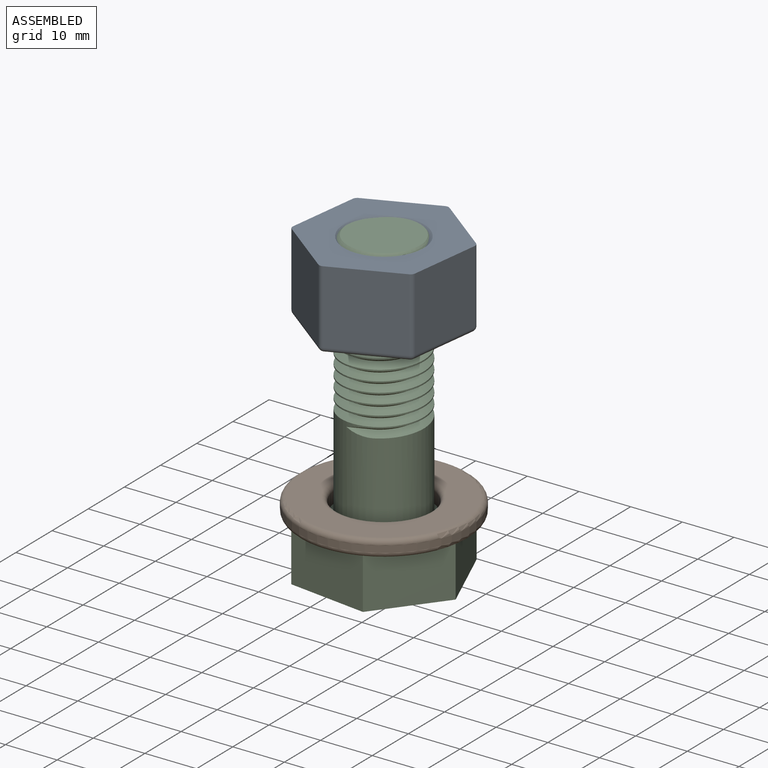
[diagram: assembled view]
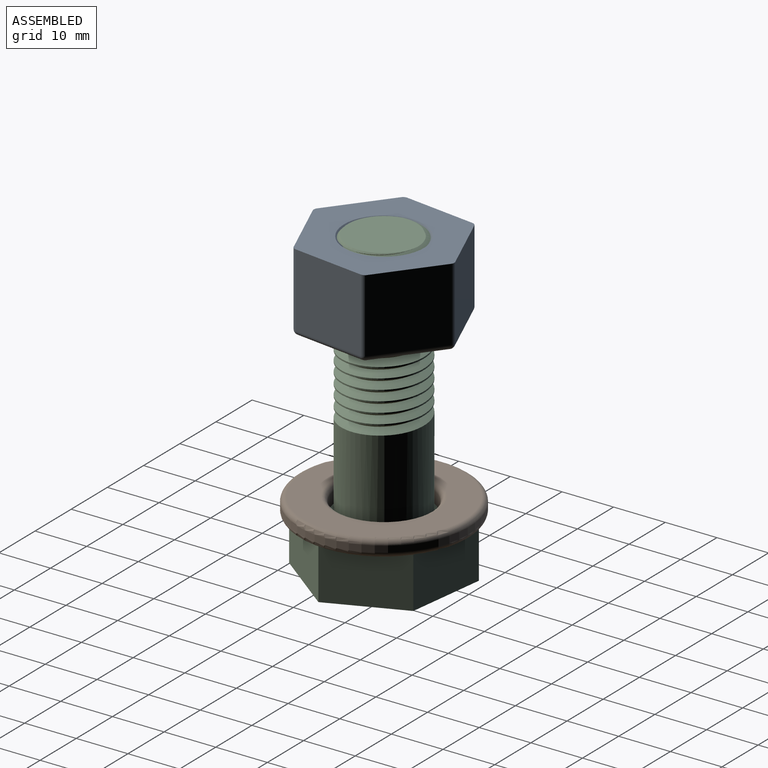
[diagram: assembled view, second angle]
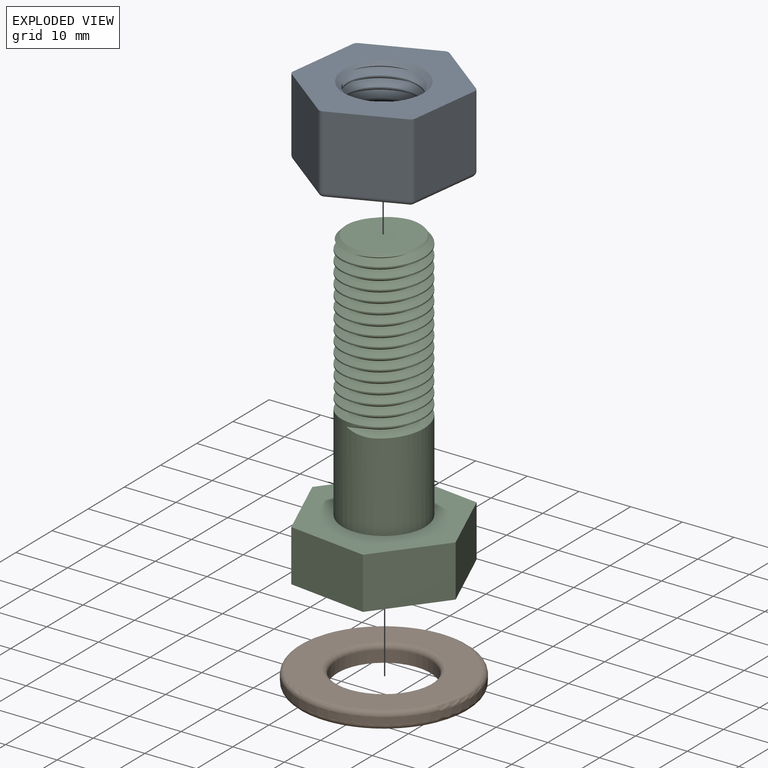
[diagram: exploded view]
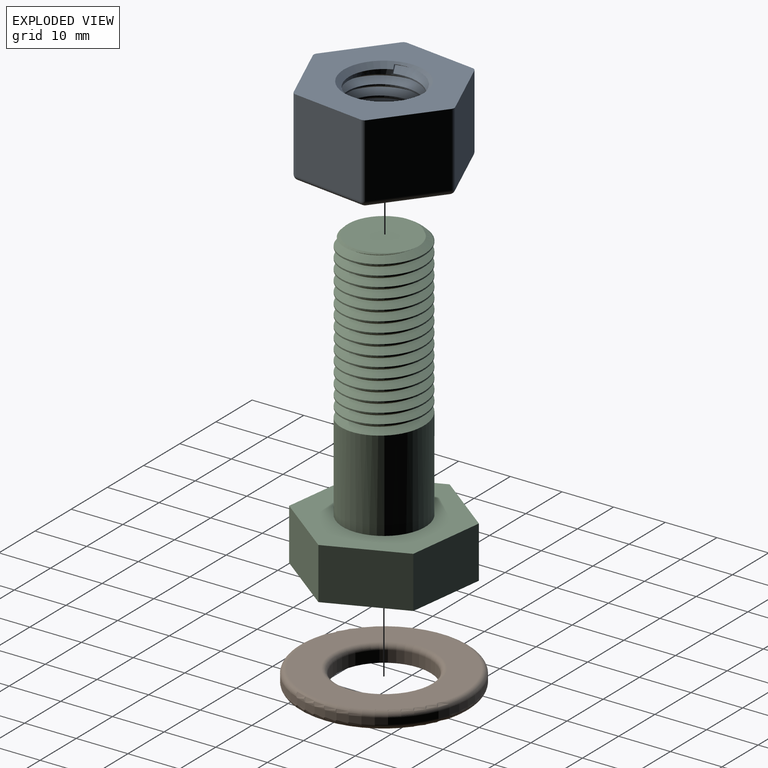
[diagram: exploded view, second angle]
ASSEMBLY  parts=3 mates=2
PART A: 32 faces, bbox 30.2x26.5x16.6 mm
  f0: cone r=7.75mm half-angle=45deg, axis (0,0,-1), area 54.6mm2, adj f8,f27,f29,f31
  f1: plane 14.25x12.13mm, normal (0.87,0.5,0), area 199.5mm2, adj f8,f17,f23,f26
  f2: plane 14.25x14mm, normal (0,1,0), area 199.5mm2, adj f8,f20,f24,f26
  f3: plane 14.25x12.13mm, normal (-0.87,0.5,0), area 199.5mm2, adj f8,f14,f19,f20
  f4: plane 14.25x12.13mm, normal (-0.87,-0.5,0), area 199.5mm2, adj f8,f9,f13,f14
  f5: plane 14.25x14mm, normal (0,-1,0), area 199.5mm2, adj f8,f9,f11,f12
  f6: plane 14.25x12.13mm, normal (0.87,-0.5,0), area 199.5mm2, adj f8,f11,f17,f18
  f7: plane 28.21x24.46mm, normal (0,0,1), area 317mm2, adj f12,f13,f18,f19,f23,f24,f28,f30
  f8: plane 30x26.25mm, normal (0,0,-1), area 407.7mm2, adj f0,f1,f2,f3,f4,f5,f6,f9
  f9: cylinder r=1mm len=14.25mm, axis (0,0,-1), area 14.9mm2, adj f4,f5,f8,f10
  f10: sphere r=1mm, area 1mm2, adj f9,f12,f13
  f11: cylinder r=1mm len=14.25mm, axis (0,0,-1), area 14.9mm2, adj f5,f6,f8,f15
  f12: cylinder r=1mm len=14mm, axis (-1,0,0), area 22mm2, adj f5,f7,f10,f15
  f13: cylinder r=1mm len=12.63mm, axis (-0.5,0.87,0), area 22mm2, adj f4,f7,f10,f16
  f14: cylinder r=1mm len=14.25mm, axis (0,0,-1), area 14.9mm2, adj f3,f4,f8,f16
  f15: sphere r=1mm, area 1mm2, adj f11,f12,f18
  f16: sphere r=1mm, area 1.4mm2, adj f13,f14,f19
  f17: cylinder r=1mm len=14.25mm, axis (0,0,-1), area 14.9mm2, adj f1,f6,f8,f21
  f18: cylinder r=1mm len=12.63mm, axis (-0.5,-0.87,0), area 22mm2, adj f6,f7,f15,f21
  f19: cylinder r=1mm len=12.63mm, axis (0.5,0.87,0), area 22mm2, adj f3,f7,f16,f22
  f20: cylinder r=1mm len=14.25mm, axis (0,0,-1), area 14.9mm2, adj f2,f3,f8,f22
  f21: sphere r=1mm, area 1.4mm2, adj f17,f18,f23
  f22: sphere r=1mm, area 1mm2, adj f19,f20,f24
  f23: cylinder r=1mm len=12.63mm, axis (0.5,-0.87,0), area 22mm2, adj f1,f7,f21,f25
  f24: cylinder r=1mm len=14mm, axis (1,0,0), area 22mm2, adj f2,f7,f22,f25
  f25: sphere r=1mm, area 1.2mm2, adj f23,f24,f26
  f26: cylinder r=1mm len=14.25mm, axis (0,0,-1), area 14.9mm2, adj f1,f2,f8,f25
  f27: cylinder r=6.75mm len=13.5mm, axis (0,0,1), area 122.5mm2, adj f0,f28,f29,f30,f31
  f28: cone r=6.75mm half-angle=45deg, axis (0,0,1), area 27.7mm2, adj f7,f27,f30,f31
  f29: plane 1.5x1.37mm, normal (0,1,0), area 1mm2, adj f0,f27,f30,f31
  f30: bspline ~19.05x16.5mm, area 552.9mm2, adj f7,f27,f28,f29,f31
  f31: bspline ~19.05x16.5mm, area 580.7mm2, adj f0,f7,f27,f28,f29,f30
PART B: 7 faces, bbox 35.7x35.7x3.3 mm
  f0: cylinder r=9mm len=18mm, axis (0,0,-1), area 127.2mm2, adj f3,f5
  f1: cylinder r=16.5mm len=33mm, axis (0,0,-1), area 129.6mm2, adj f4,f6
  f2: plane 31x31mm, normal (0,0,1), area 440.6mm2, adj f5,f6
  f3: plane 31x31mm, normal (0,0,-1), area 500.3mm2, adj f0,f4
  f4: torus R=15.5mm, axis (0,0,1), area 159.3mm2, adj f1,f3
  f5: torus R=10mm, axis (0,0,1), area 92.4mm2, adj f0,f2
  f6: torus R=15.5mm, axis (0,0,1), area 159.3mm2, adj f1,f2
PART C: 30 faces, bbox 31x26.9x60.2 mm
  f0: cylinder r=8mm len=19mm, axis (0,0,-1), area 899.1mm2, adj f1,f22,f27,f28,f29
  f1: cylinder r=8mm len=16mm, axis (0,0,-1), area 13.5mm2, adj f0,f2,f26,f27
  f2: cylinder r=8mm len=16mm, axis (0,0,-1), area 13.4mm2, adj f1,f3,f26,f27
  f3: cylinder r=8mm len=16mm, axis (0,0,-1), area 13.5mm2, adj f2,f4,f26,f27
  f4: cylinder r=8mm len=16mm, axis (0,0,-1), area 13.4mm2, adj f3,f5,f26,f27
  f5: cylinder r=8mm len=16mm, axis (0,0,-1), area 13.5mm2, adj f4,f6,f26,f27
  f6: cylinder r=8mm len=16mm, axis (0,0,-1), area 13.4mm2, adj f5,f7,f26,f27
  f7: cylinder r=8mm len=16mm, axis (0,0,-1), area 13.5mm2, adj f6,f8,f26,f27
  f8: cylinder r=8mm len=16mm, axis (0,0,-1), area 13.4mm2, adj f7,f9,f26,f27
  f9: cylinder r=8mm len=16mm, axis (0,0,-1), area 13.5mm2, adj f8,f10,f26,f27
  f10: cylinder r=8mm len=16mm, axis (0,0,-1), area 13.4mm2, adj f9,f11,f26,f27
  f11: cylinder r=8mm len=16mm, axis (0,0,-1), area 13.4mm2, adj f10,f12,f26,f27
  f12: cylinder r=8mm len=16mm, axis (0,0,-1), area 13.5mm2, adj f11,f13,f26,f27
  f13: cylinder r=8mm len=16mm, axis (0,0,-1), area 13.4mm2, adj f12,f14,f26,f27
  f14: cylinder r=8mm len=16mm, axis (0,0,-1), area 13.5mm2, adj f13,f15,f26,f27
  f15: cylinder r=8mm len=16mm, axis (0,0,-1), area 7.6mm2, adj f14,f25,f26,f27
  f16: plane 13.35x10mm, normal (0.87,0.5,0), area 154.2mm2, adj f17,f21,f22,f23
  f17: plane 15.42x10mm, normal (0,1,0), area 154.2mm2, adj f16,f18,f22,f23
  f18: plane 13.35x10mm, normal (-0.87,0.5,0), area 154.2mm2, adj f17,f19,f22,f23
  f19: plane 13.35x10mm, normal (-0.87,-0.5,0), area 154.2mm2, adj f18,f20,f22,f23
  f20: plane 15.42x10mm, normal (0,-1,0), area 154.2mm2, adj f19,f21,f22,f23
  f21: plane 13.35x10mm, normal (0.87,-0.5,0), area 154.2mm2, adj f16,f20,f22,f23
  f22: plane 30.83x26.7mm, normal (0,0,1), area 416.3mm2, adj f0,f16,f17,f18,f19,f20,f21
  f23: plane 30.83x26.7mm, normal (0,0,-1), area 617.4mm2, adj f16,f17,f18,f19,f20,f21
  f24: plane 14.17x13.92mm, normal (0,0,1), area 150.8mm2, adj f25,f26,f27
  f25: cone r=7mm half-angle=45deg, axis (0,0,-1), area 27.6mm2, adj f15,f24,f26,f27
  f26: bspline ~32.2x18.48mm, area 1198.6mm2, adj f1,f2,f3,f4,f5,f6,f7,f8
  f27: bspline ~32.53x18.48mm, area 1233mm2, adj f0,f1,f2,f3,f4,f5,f6,f7
  f28: plane 4.66x1.5mm, normal (0.5,0,-0.87), area 5.5mm2, adj f0,f26,f29
  f29: plane 4.66x1.5mm, normal (0.5,0,0.87), area 5.5mm2, adj f0,f27,f28
PLACE A rot(axis=(0.2,-0.98,0),180deg) t=(-61.91,50.24,64.9)mm
PLACE B rot(axis=(0,0,1),22.5deg) t=(-61.91,50.24,16.15)mm
PLACE C rot(axis=(0,0,-1),67.5deg) t=(-61.91,50.24,6.15)mm
MATE cylindrical C.f0 <-> A.f0  axis (0,0,1) through (-61.91,50.24,65.15)mm
MATE fastened B.f0 <-> C.f0  axis (0,0,-1) through (-61.91,50.24,16.15)mm
